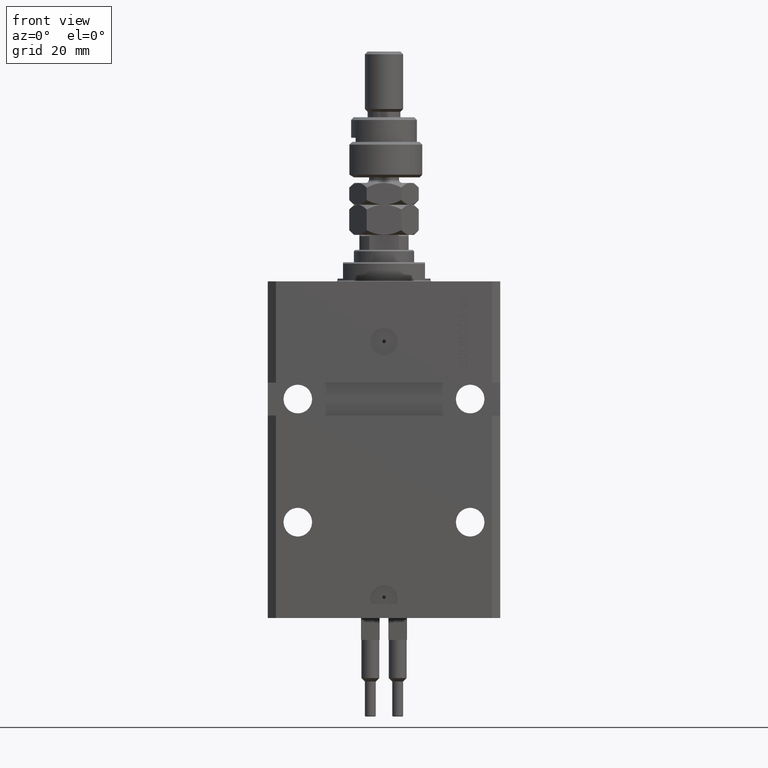
[diagram: clean part render]
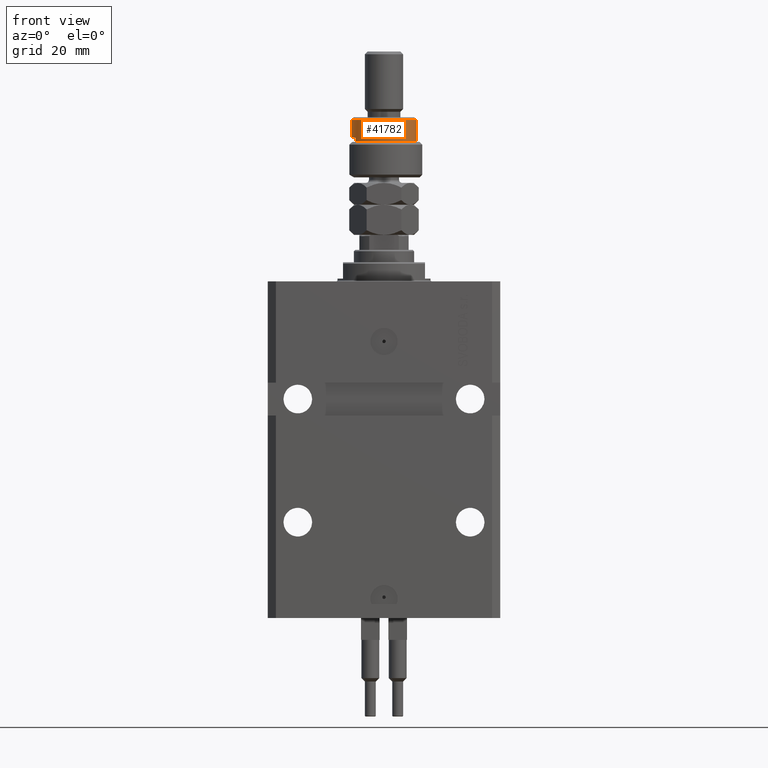
[diagram: same view with one face highlighted and labeled with its STEP entity id]
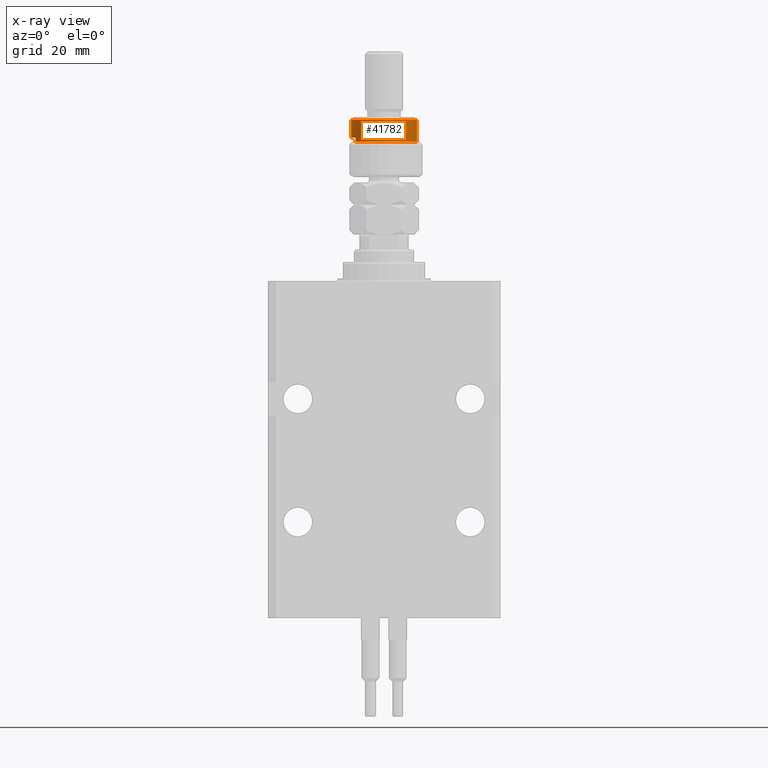
[diagram: x-ray of the same camera — body ghosted, the highlighted face saturated]
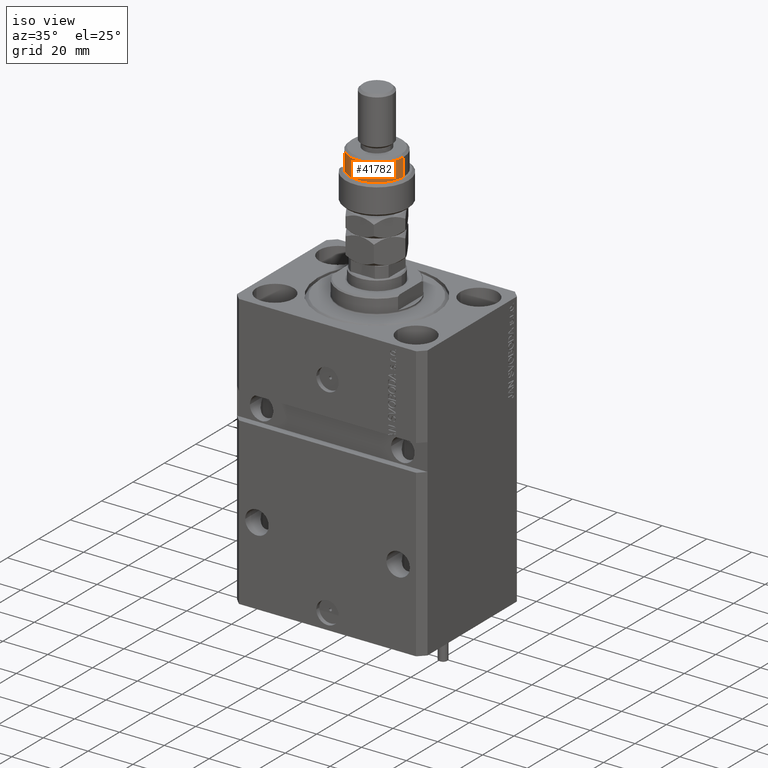
[diagram: same view with one face highlighted and labeled with its STEP entity id]
A machine part, front view. The second image highlights one B-rep face of the part: STEP entity #41782.
The next image is the same camera in x-ray: the body ghosted, the highlighted face saturated — about 0% of this face is hidden behind the body in this view.
A second angle (iso view) of the same face is appended — the face is thin or edge-on in the first view.
In plain terms, the highlighted cylindrical surface (edge-blend (fillet) strip) has radius 12 mm, axis along (-0, -0, -1).
Its self-contained STEP definition (entity closure, byte-faithful):
#1091 = VERTEX_POINT ( 'NONE', #28982 ) ;
#1954 = DIRECTION ( 'NONE',  ( 1.000000000000000000, 0.000000000000000000, 0.000000000000000000 ) ) ;
#3224 = CARTESIAN_POINT ( 'NONE',  ( 12.00000000000000178, 1.469576158976824144E-15, 13.00000000000000000 ) ) ;
#3622 = CARTESIAN_POINT ( 'NONE',  ( 12.00000000000000178, 1.469576158976824144E-15, 22.00000000000000000 ) ) ;
#5197 = ORIENTED_EDGE ( 'NONE', *, *, #30452, .T. ) ;
#6393 = AXIS2_PLACEMENT_3D ( 'NONE', #12146, #36753, #36495 ) ;
#6524 = LINE ( 'NONE', #29592, #39971 ) ;
#7448 = CARTESIAN_POINT ( 'NONE',  ( 0.000000000000000000, 0.000000000000000000, 14.50000000000000000 ) ) ;
#7920 = VERTEX_POINT ( 'NONE', #38198 ) ;
#8350 = EDGE_LOOP ( 'NONE', ( #16650, #5197, #48150, #45933, #26586, #36281 ) ) ;
#8568 = DIRECTION ( 'NONE',  ( -0.000000000000000000, -0.000000000000000000, -1.000000000000000000 ) ) ;
#9683 = AXIS2_PLACEMENT_3D ( 'NONE', #25253, #45923, #10038 ) ;
#10038 = DIRECTION ( 'NONE',  ( -1.000000000000000000, 0.000000000000000000, 0.000000000000000000 ) ) ;
#12146 = CARTESIAN_POINT ( 'NONE',  ( 0.000000000000000000, 0.000000000000000000, 13.00000000000000000 ) ) ;
#13719 = CARTESIAN_POINT ( 'NONE',  ( -10.39230484541326760, -6.000000000000000000, 13.00000000000000000 ) ) ;
#13970 = FACE_OUTER_BOUND ( 'NONE', #8350, .T. ) ;
#14005 = VECTOR ( 'NONE', #40747, 1000.000000000000000 ) ;
#15189 = CIRCLE ( 'NONE', #26094, 12.00000000000000178 ) ;
#16650 = ORIENTED_EDGE ( 'NONE', *, *, #42430, .F. ) ;
#17203 = VECTOR ( 'NONE', #8568, 1000.000000000000000 ) ;
#18550 = DIRECTION ( 'NONE',  ( -0.000000000000000000, -0.000000000000000000, -1.000000000000000000 ) ) ;
#19168 = CARTESIAN_POINT ( 'NONE',  ( -12.00000000000000178, 0.000000000000000000, 20.99999999999999645 ) ) ;
#20731 = VERTEX_POINT ( 'NONE', #3224 ) ;
#21429 = CIRCLE ( 'NONE', #29796, 12.00000000000000178 ) ;
#22041 = EDGE_CURVE ( 'NONE', #7920, #34970, #6524, .T. ) ;
#24769 = LINE ( 'NONE', #32867, #14005 ) ;
#25253 = CARTESIAN_POINT ( 'NONE',  ( 0.000000000000000000, 0.000000000000000000, 22.00000000000000000 ) ) ;
#26094 = AXIS2_PLACEMENT_3D ( 'NONE', #37549, #34124, #1954 ) ;
#26586 = ORIENTED_EDGE ( 'NONE', *, *, #22041, .T. ) ;
#28130 = DIRECTION ( 'NONE',  ( 0.000000000000000000, 0.000000000000000000, -1.000000000000000000 ) ) ;
#28982 = CARTESIAN_POINT ( 'NONE',  ( -12.00000000000000178, 0.000000000000000000, 14.50000000000000000 ) ) ;
#28986 = CIRCLE ( 'NONE', #6393, 12.00000000000000178 ) ;
#29592 = CARTESIAN_POINT ( 'NONE',  ( -10.39230484541326760, -6.000000000000000000, 22.00000000000000000 ) ) ;
#29796 = AXIS2_PLACEMENT_3D ( 'NONE', #7448, #28130, #40168 ) ;
#29961 = CYLINDRICAL_SURFACE ( 'NONE', #9683, 12.00000000000000178 ) ;
#30452 = EDGE_CURVE ( 'NONE', #49589, #41028, #15189, .T. ) ;
#32867 = CARTESIAN_POINT ( 'NONE',  ( -12.00000000000000178, 0.000000000000000000, 22.00000000000000000 ) ) ;
#34124 = DIRECTION ( 'NONE',  ( 0.000000000000000000, 0.000000000000000000, -1.000000000000000000 ) ) ;
#34970 = VERTEX_POINT ( 'NONE', #13719 ) ;
#36281 = ORIENTED_EDGE ( 'NONE', *, *, #43315, .T. ) ;
#36495 = DIRECTION ( 'NONE',  ( 1.000000000000000000, 0.000000000000000000, 0.000000000000000000 ) ) ;
#36589 = LINE ( 'NONE', #3622, #17203 ) ;
#36753 = DIRECTION ( 'NONE',  ( 0.000000000000000000, 0.000000000000000000, 1.000000000000000000 ) ) ;
#37059 = CARTESIAN_POINT ( 'NONE',  ( 12.00000000000000178, 1.469576158976824144E-15, 20.99999999999999645 ) ) ;
#37549 = CARTESIAN_POINT ( 'NONE',  ( 0.000000000000000000, 0.000000000000000000, 20.99999999999999645 ) ) ;
#38198 = CARTESIAN_POINT ( 'NONE',  ( -10.39230484541326582, -5.999999999999998224, 14.50000000000000000 ) ) ;
#39971 = VECTOR ( 'NONE', #18550, 1000.000000000000000 ) ;
#40168 = DIRECTION ( 'NONE',  ( -1.000000000000000000, 0.000000000000000000, 0.000000000000000000 ) ) ;
#40747 = DIRECTION ( 'NONE',  ( -0.000000000000000000, -0.000000000000000000, -1.000000000000000000 ) ) ;
#41028 = VERTEX_POINT ( 'NONE', #19168 ) ;
#41782 = ADVANCED_FACE ( 'NONE', ( #13970 ), #29961, .T. ) ;
#42430 = EDGE_CURVE ( 'NONE', #49589, #20731, #36589, .T. ) ;
#43176 = EDGE_CURVE ( 'NONE', #7920, #1091, #21429, .T. ) ;
#43315 = EDGE_CURVE ( 'NONE', #34970, #20731, #28986, .T. ) ;
#45923 = DIRECTION ( 'NONE',  ( -0.000000000000000000, -0.000000000000000000, -1.000000000000000000 ) ) ;
#45933 = ORIENTED_EDGE ( 'NONE', *, *, #43176, .F. ) ;
#48150 = ORIENTED_EDGE ( 'NONE', *, *, #49418, .T. ) ;
#49418 = EDGE_CURVE ( 'NONE', #41028, #1091, #24769, .T. ) ;
#49589 = VERTEX_POINT ( 'NONE', #37059 ) ;